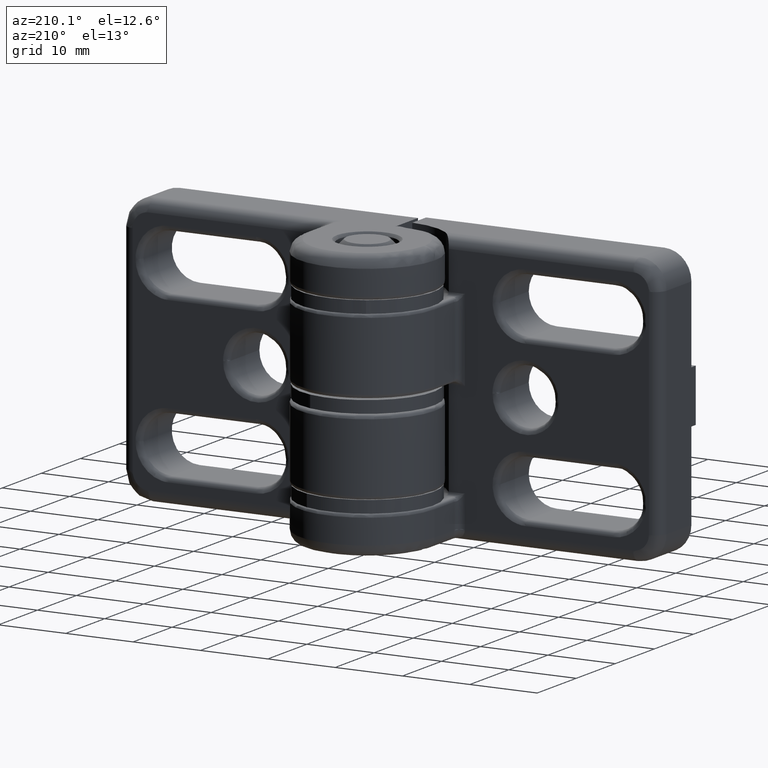
[diagram: clean part render]
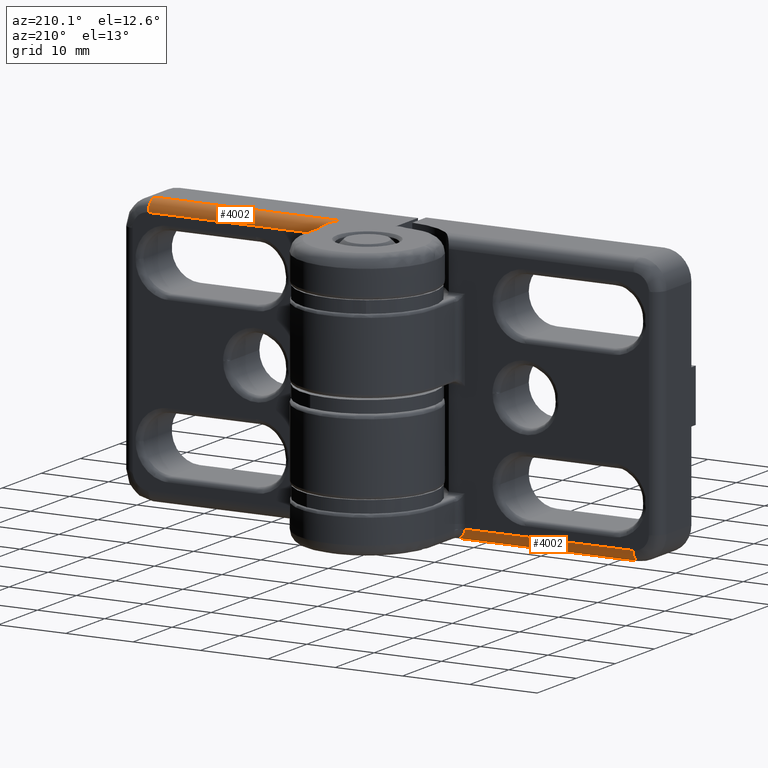
[diagram: same view with one multi-face feature highlighted, each face labeled with its STEP entity id]
A machine part, auxiliary view. The highlighted faces form ONE feature: a constant-radius fillet chain: 2 tangent blend faces with common blend radius 1.69 mm. The faces share edges in the B-rep.
Their STEP definitions:
[1] entity #4002 (Cylinder):
#38 = EDGE_CURVE ( 'NONE', #3611, #4102, #4451, .T. ) ;
#72 = CARTESIAN_POINT ( 'NONE',  ( -8.616843969807044700, -7.690000000000000400, -38.31000000000000200 ) ) ;
#216 = CARTESIAN_POINT ( 'NONE',  ( -11.00000000000000500, -6.000000000000000900, -38.41489750908106500 ) ) ;
#238 = CARTESIAN_POINT ( 'NONE',  ( -10.87015223927734000, -6.081546922280966600, -38.83137427469692000 ) ) ;
#404 = DIRECTION ( 'NONE',  ( -1.000000000000000000, -0.0000000000000000000, 0.0000000000000000000 ) ) ;
#516 = DIRECTION ( 'NONE',  ( 1.000000000000000000, 1.381890554847218500E-016, -0.0000000000000000000 ) ) ;
#580 = DIRECTION ( 'NONE',  ( 1.000000000000000000, 1.381890554847218500E-016, -0.0000000000000000000 ) ) ;
#648 = CARTESIAN_POINT ( 'NONE',  ( -9.962097781041489200, -6.651748226312678400, -39.64842007808361800 ) ) ;
#692 = EDGE_CURVE ( 'NONE', #848, #2110, #3116, .T. ) ;
#693 = CARTESIAN_POINT ( 'NONE',  ( -8.534809781627444600, -7.548762627899488800, -40.00000000000000700 ) ) ;
#826 = VECTOR ( 'NONE', #404, 1000.000000000000000 ) ;
#835 = B_SPLINE_CURVE_WITH_KNOTS ( 'NONE', 3,
 ( #5071, #216, #3305, #1100, #2829, #238, #4147, #1591, #3743, #1138, #2448, #5054, #2428, #5557, #1521, #4169, #4613, #3232, #648, #5498, #1156, #5539, #3678, #4214, #2845, #4645, #4666, #3259, #3283, #2471, #1076, #1501, #693, #4195 ),
 .UNSPECIFIED., .F., .F.,
 ( 4, 2, 2, 2, 2, 2, 1, 1, 2, 2, 2, 2, 1, 1, 1, 1, 2, 2, 2, 4 ),
 ( 0.0000000000000000000, 0.1249999999999786300, 0.1874999999999679400, 0.2499999999999572600, 0.3749999999999364400, 0.4374999999999242800, 0.4687499999999176800, 0.4843749999999156800, 0.4921874999999151200, 0.4999999999999146200, 0.6249999999999358300, 0.6874999999999464900, 0.7187499999999528200, 0.7343749999999559200, 0.7421874999999579200, 0.7460937499999591400, 0.7480468749999597000, 0.7499999999999602500, 0.8749999999999800200, 1.000000000000000000 ),
 .UNSPECIFIED. ) ;
#848 = VERTEX_POINT ( 'NONE', #3490 ) ;
#1073 = FACE_OUTER_BOUND ( 'NONE', #2516, .T. ) ;
#1076 = CARTESIAN_POINT ( 'NONE',  ( -9.059787492741765600, -7.218227404868478000, -39.93628537761496500 ) ) ;
#1100 = CARTESIAN_POINT ( 'NONE',  ( -10.93704350995265000, -6.039458712475565400, -38.67692211151352700 ) ) ;
#1138 = CARTESIAN_POINT ( 'NONE',  ( -10.51489692349308500, -6.304590127779642100, -39.27956085353108100 ) ) ;
#1156 = CARTESIAN_POINT ( 'NONE',  ( -9.653620176495266500, -6.845593580259509800, -39.77517561869756000 ) ) ;
#1213 = CYLINDRICAL_SURFACE ( 'NONE', #1956, 1.690000000000000600 ) ;
#1370 = DIRECTION ( 'NONE',  ( 0.0000000000000000000, 1.000000000000000000, 0.0000000000000000000 ) ) ;
#1501 = CARTESIAN_POINT ( 'NONE',  ( -8.729729236501285100, -7.425481319604487300, -39.98254398408030100 ) ) ;
#1521 = CARTESIAN_POINT ( 'NONE',  ( -10.24559496938072600, -6.473952364515914000, -39.48362016537286200 ) ) ;
#1591 = CARTESIAN_POINT ( 'NONE',  ( -10.74675552305162200, -6.159103002345758200, -39.03424263246488100 ) ) ;
#1612 = CARTESIAN_POINT ( 'NONE',  ( -8.616843969807044700, -6.000000000000000000, -38.31000000000000200 ) ) ;
#1711 = ORIENTED_EDGE ( 'NONE', *, *, #4998, .T. ) ;
#1956 = AXIS2_PLACEMENT_3D ( 'NONE', #72, #516, #1370 ) ;
#2058 = VECTOR ( 'NONE', #3365, 1000.000000000000000 ) ;
#2110 = VERTEX_POINT ( 'NONE', #4144 ) ;
#2428 = CARTESIAN_POINT ( 'NONE',  ( -10.32662282287068200, -6.423008057740044100, -39.42909828730402200 ) ) ;
#2448 = CARTESIAN_POINT ( 'NONE',  ( -10.46054658179532200, -6.338767247700657100, -39.32672467856750800 ) ) ;
#2471 = CARTESIAN_POINT ( 'NONE',  ( -9.194926294108402200, -7.134042960946294100, -39.90751972947324300 ) ) ;
#2516 = EDGE_LOOP ( 'NONE', ( #2866, #1711, #4378, #5283 ) ) ;
#2829 = CARTESIAN_POINT ( 'NONE',  ( -10.91736960681285300, -6.051835920708138700, -38.72877307322390500 ) ) ;
#2845 = CARTESIAN_POINT ( 'NONE',  ( -9.341046119261811500, -7.042236213943599700, -39.87096481265776800 ) ) ;
#2866 = ORIENTED_EDGE ( 'NONE', *, *, #692, .T. ) ;
#3090 = CIRCLE ( 'NONE', #4979, 1.690000000000000600 ) ;
#3116 = LINE ( 'NONE', #4803, #826 ) ;
#3232 = CARTESIAN_POINT ( 'NONE',  ( -10.09610107186217000, -6.567878103366036900, -39.57789902377657400 ) ) ;
#3259 = CARTESIAN_POINT ( 'NONE',  ( -9.306044272793592100, -7.064232273391093400, -39.87987855547902400 ) ) ;
#3283 = CARTESIAN_POINT ( 'NONE',  ( -9.301819276137271300, -7.066886768651286000, -39.88093320534742500 ) ) ;
#3286 = EDGE_CURVE ( 'NONE', #4102, #848, #835, .T. ) ;
#3305 = CARTESIAN_POINT ( 'NONE',  ( -10.98426087748816500, -6.009795558553102000, -38.52044368820066500 ) ) ;
#3365 = DIRECTION ( 'NONE',  ( 1.000000000000000000, 1.381890554847218500E-016, -0.0000000000000000000 ) ) ;
#3490 = CARTESIAN_POINT ( 'NONE',  ( -8.310000000000002300, -7.690000000000001300, -40.00000000000000700 ) ) ;
#3611 = VERTEX_POINT ( 'NONE', #5346 ) ;
#3678 = CARTESIAN_POINT ( 'NONE',  ( -9.460709158796117200, -6.966982877466722200, -39.83808199339841100 ) ) ;
#3743 = CARTESIAN_POINT ( 'NONE',  ( -10.66465024560961800, -6.210512414760863500, -39.13489486366778200 ) ) ;
#4002 = ADVANCED_FACE ( 'NONE', ( #1073 ), #1213, .T. ) ;
#4102 = VERTEX_POINT ( 'NONE', #4223 ) ;
#4144 = CARTESIAN_POINT ( 'NONE',  ( -36.00000000000001400, -7.690000000000002200, -40.00000000000000700 ) ) ;
#4147 = CARTESIAN_POINT ( 'NONE',  ( -10.84331803326109900, -6.098435155633861600, -38.88099877250692100 ) ) ;
#4169 = CARTESIAN_POINT ( 'NONE',  ( -10.22895999369077700, -6.484406927058993000, -39.49435699297674100 ) ) ;
#4195 = CARTESIAN_POINT ( 'NONE',  ( -8.310000000000002300, -7.690000000000001300, -40.00000000000000700 ) ) ;
#4214 = CARTESIAN_POINT ( 'NONE',  ( -9.381425634454382500, -7.016850808979283400, -39.86029083613905000 ) ) ;
#4223 = CARTESIAN_POINT ( 'NONE',  ( -11.00000000000000400, -6.000000000000000900, -38.31000000000000200 ) ) ;
#4378 = ORIENTED_EDGE ( 'NONE', *, *, #38, .T. ) ;
#4451 = LINE ( 'NONE', #1612, #2058 ) ;
#4489 = CARTESIAN_POINT ( 'NONE',  ( -36.00000000000001400, -7.690000000000003900, -38.31000000000000200 ) ) ;
#4509 = DIRECTION ( 'NONE',  ( 0.0000000000000000000, 1.000000000000000000, 0.0000000000000000000 ) ) ;
#4613 = CARTESIAN_POINT ( 'NONE',  ( -10.21936825198741700, -6.490434004571530300, -39.50045492498205800 ) ) ;
#4645 = CARTESIAN_POINT ( 'NONE',  ( -9.320671923410104800, -7.055040918074974200, -39.87619104240133100 ) ) ;
#4666 = CARTESIAN_POINT ( 'NONE',  ( -9.311900602704636000, -7.060552550983848300, -39.87840678254885800 ) ) ;
#4803 = CARTESIAN_POINT ( 'NONE',  ( 0.0000000000000000000, -7.690000000000000400, -40.00000000000000000 ) ) ;
#4979 = AXIS2_PLACEMENT_3D ( 'NONE', #4489, #580, #4509 ) ;
#4998 = EDGE_CURVE ( 'NONE', #2110, #3611, #3090, .T. ) ;
#5054 = CARTESIAN_POINT ( 'NONE',  ( -10.37237221776029500, -6.394229139262317400, -39.39533065569291600 ) ) ;
#5071 = CARTESIAN_POINT ( 'NONE',  ( -11.00000000000000400, -6.000000000000000900, -38.31000000000000200 ) ) ;
#5283 = ORIENTED_EDGE ( 'NONE', *, *, #3286, .T. ) ;
#5346 = CARTESIAN_POINT ( 'NONE',  ( -36.00000000000001400, -6.000000000000003600, -38.31000000000000200 ) ) ;
#5498 = CARTESIAN_POINT ( 'NONE',  ( -9.734112162873895400, -6.794967167210694800, -39.74468637373286100 ) ) ;
#5539 = CARTESIAN_POINT ( 'NONE',  ( -9.526137026443189300, -6.925808588947036000, -39.81765610671136100 ) ) ;
#5557 = CARTESIAN_POINT ( 'NONE',  ( -10.27033965630663600, -6.458398744959565900, -39.46743231917752600 ) ) ;
[2] entity #4002 (Cylinder):
#38 = EDGE_CURVE ( 'NONE', #3611, #4102, #4451, .T. ) ;
#72 = CARTESIAN_POINT ( 'NONE',  ( -8.616843969807044700, -7.690000000000000400, -38.31000000000000200 ) ) ;
#216 = CARTESIAN_POINT ( 'NONE',  ( -11.00000000000000500, -6.000000000000000900, -38.41489750908106500 ) ) ;
#238 = CARTESIAN_POINT ( 'NONE',  ( -10.87015223927734000, -6.081546922280966600, -38.83137427469692000 ) ) ;
#404 = DIRECTION ( 'NONE',  ( -1.000000000000000000, -0.0000000000000000000, 0.0000000000000000000 ) ) ;
#516 = DIRECTION ( 'NONE',  ( 1.000000000000000000, 1.381890554847218500E-016, -0.0000000000000000000 ) ) ;
#580 = DIRECTION ( 'NONE',  ( 1.000000000000000000, 1.381890554847218500E-016, -0.0000000000000000000 ) ) ;
#648 = CARTESIAN_POINT ( 'NONE',  ( -9.962097781041489200, -6.651748226312678400, -39.64842007808361800 ) ) ;
#692 = EDGE_CURVE ( 'NONE', #848, #2110, #3116, .T. ) ;
#693 = CARTESIAN_POINT ( 'NONE',  ( -8.534809781627444600, -7.548762627899488800, -40.00000000000000700 ) ) ;
#826 = VECTOR ( 'NONE', #404, 1000.000000000000000 ) ;
#835 = B_SPLINE_CURVE_WITH_KNOTS ( 'NONE', 3,
 ( #5071, #216, #3305, #1100, #2829, #238, #4147, #1591, #3743, #1138, #2448, #5054, #2428, #5557, #1521, #4169, #4613, #3232, #648, #5498, #1156, #5539, #3678, #4214, #2845, #4645, #4666, #3259, #3283, #2471, #1076, #1501, #693, #4195 ),
 .UNSPECIFIED., .F., .F.,
 ( 4, 2, 2, 2, 2, 2, 1, 1, 2, 2, 2, 2, 1, 1, 1, 1, 2, 2, 2, 4 ),
 ( 0.0000000000000000000, 0.1249999999999786300, 0.1874999999999679400, 0.2499999999999572600, 0.3749999999999364400, 0.4374999999999242800, 0.4687499999999176800, 0.4843749999999156800, 0.4921874999999151200, 0.4999999999999146200, 0.6249999999999358300, 0.6874999999999464900, 0.7187499999999528200, 0.7343749999999559200, 0.7421874999999579200, 0.7460937499999591400, 0.7480468749999597000, 0.7499999999999602500, 0.8749999999999800200, 1.000000000000000000 ),
 .UNSPECIFIED. ) ;
#848 = VERTEX_POINT ( 'NONE', #3490 ) ;
#1073 = FACE_OUTER_BOUND ( 'NONE', #2516, .T. ) ;
#1076 = CARTESIAN_POINT ( 'NONE',  ( -9.059787492741765600, -7.218227404868478000, -39.93628537761496500 ) ) ;
#1100 = CARTESIAN_POINT ( 'NONE',  ( -10.93704350995265000, -6.039458712475565400, -38.67692211151352700 ) ) ;
#1138 = CARTESIAN_POINT ( 'NONE',  ( -10.51489692349308500, -6.304590127779642100, -39.27956085353108100 ) ) ;
#1156 = CARTESIAN_POINT ( 'NONE',  ( -9.653620176495266500, -6.845593580259509800, -39.77517561869756000 ) ) ;
#1213 = CYLINDRICAL_SURFACE ( 'NONE', #1956, 1.690000000000000600 ) ;
#1370 = DIRECTION ( 'NONE',  ( 0.0000000000000000000, 1.000000000000000000, 0.0000000000000000000 ) ) ;
#1501 = CARTESIAN_POINT ( 'NONE',  ( -8.729729236501285100, -7.425481319604487300, -39.98254398408030100 ) ) ;
#1521 = CARTESIAN_POINT ( 'NONE',  ( -10.24559496938072600, -6.473952364515914000, -39.48362016537286200 ) ) ;
#1591 = CARTESIAN_POINT ( 'NONE',  ( -10.74675552305162200, -6.159103002345758200, -39.03424263246488100 ) ) ;
#1612 = CARTESIAN_POINT ( 'NONE',  ( -8.616843969807044700, -6.000000000000000000, -38.31000000000000200 ) ) ;
#1711 = ORIENTED_EDGE ( 'NONE', *, *, #4998, .T. ) ;
#1956 = AXIS2_PLACEMENT_3D ( 'NONE', #72, #516, #1370 ) ;
#2058 = VECTOR ( 'NONE', #3365, 1000.000000000000000 ) ;
#2110 = VERTEX_POINT ( 'NONE', #4144 ) ;
#2428 = CARTESIAN_POINT ( 'NONE',  ( -10.32662282287068200, -6.423008057740044100, -39.42909828730402200 ) ) ;
#2448 = CARTESIAN_POINT ( 'NONE',  ( -10.46054658179532200, -6.338767247700657100, -39.32672467856750800 ) ) ;
#2471 = CARTESIAN_POINT ( 'NONE',  ( -9.194926294108402200, -7.134042960946294100, -39.90751972947324300 ) ) ;
#2516 = EDGE_LOOP ( 'NONE', ( #2866, #1711, #4378, #5283 ) ) ;
#2829 = CARTESIAN_POINT ( 'NONE',  ( -10.91736960681285300, -6.051835920708138700, -38.72877307322390500 ) ) ;
#2845 = CARTESIAN_POINT ( 'NONE',  ( -9.341046119261811500, -7.042236213943599700, -39.87096481265776800 ) ) ;
#2866 = ORIENTED_EDGE ( 'NONE', *, *, #692, .T. ) ;
#3090 = CIRCLE ( 'NONE', #4979, 1.690000000000000600 ) ;
#3116 = LINE ( 'NONE', #4803, #826 ) ;
#3232 = CARTESIAN_POINT ( 'NONE',  ( -10.09610107186217000, -6.567878103366036900, -39.57789902377657400 ) ) ;
#3259 = CARTESIAN_POINT ( 'NONE',  ( -9.306044272793592100, -7.064232273391093400, -39.87987855547902400 ) ) ;
#3283 = CARTESIAN_POINT ( 'NONE',  ( -9.301819276137271300, -7.066886768651286000, -39.88093320534742500 ) ) ;
#3286 = EDGE_CURVE ( 'NONE', #4102, #848, #835, .T. ) ;
#3305 = CARTESIAN_POINT ( 'NONE',  ( -10.98426087748816500, -6.009795558553102000, -38.52044368820066500 ) ) ;
#3365 = DIRECTION ( 'NONE',  ( 1.000000000000000000, 1.381890554847218500E-016, -0.0000000000000000000 ) ) ;
#3490 = CARTESIAN_POINT ( 'NONE',  ( -8.310000000000002300, -7.690000000000001300, -40.00000000000000700 ) ) ;
#3611 = VERTEX_POINT ( 'NONE', #5346 ) ;
#3678 = CARTESIAN_POINT ( 'NONE',  ( -9.460709158796117200, -6.966982877466722200, -39.83808199339841100 ) ) ;
#3743 = CARTESIAN_POINT ( 'NONE',  ( -10.66465024560961800, -6.210512414760863500, -39.13489486366778200 ) ) ;
#4002 = ADVANCED_FACE ( 'NONE', ( #1073 ), #1213, .T. ) ;
#4102 = VERTEX_POINT ( 'NONE', #4223 ) ;
#4144 = CARTESIAN_POINT ( 'NONE',  ( -36.00000000000001400, -7.690000000000002200, -40.00000000000000700 ) ) ;
#4147 = CARTESIAN_POINT ( 'NONE',  ( -10.84331803326109900, -6.098435155633861600, -38.88099877250692100 ) ) ;
#4169 = CARTESIAN_POINT ( 'NONE',  ( -10.22895999369077700, -6.484406927058993000, -39.49435699297674100 ) ) ;
#4195 = CARTESIAN_POINT ( 'NONE',  ( -8.310000000000002300, -7.690000000000001300, -40.00000000000000700 ) ) ;
#4214 = CARTESIAN_POINT ( 'NONE',  ( -9.381425634454382500, -7.016850808979283400, -39.86029083613905000 ) ) ;
#4223 = CARTESIAN_POINT ( 'NONE',  ( -11.00000000000000400, -6.000000000000000900, -38.31000000000000200 ) ) ;
#4378 = ORIENTED_EDGE ( 'NONE', *, *, #38, .T. ) ;
#4451 = LINE ( 'NONE', #1612, #2058 ) ;
#4489 = CARTESIAN_POINT ( 'NONE',  ( -36.00000000000001400, -7.690000000000003900, -38.31000000000000200 ) ) ;
#4509 = DIRECTION ( 'NONE',  ( 0.0000000000000000000, 1.000000000000000000, 0.0000000000000000000 ) ) ;
#4613 = CARTESIAN_POINT ( 'NONE',  ( -10.21936825198741700, -6.490434004571530300, -39.50045492498205800 ) ) ;
#4645 = CARTESIAN_POINT ( 'NONE',  ( -9.320671923410104800, -7.055040918074974200, -39.87619104240133100 ) ) ;
#4666 = CARTESIAN_POINT ( 'NONE',  ( -9.311900602704636000, -7.060552550983848300, -39.87840678254885800 ) ) ;
#4803 = CARTESIAN_POINT ( 'NONE',  ( 0.0000000000000000000, -7.690000000000000400, -40.00000000000000000 ) ) ;
#4979 = AXIS2_PLACEMENT_3D ( 'NONE', #4489, #580, #4509 ) ;
#4998 = EDGE_CURVE ( 'NONE', #2110, #3611, #3090, .T. ) ;
#5054 = CARTESIAN_POINT ( 'NONE',  ( -10.37237221776029500, -6.394229139262317400, -39.39533065569291600 ) ) ;
#5071 = CARTESIAN_POINT ( 'NONE',  ( -11.00000000000000400, -6.000000000000000900, -38.31000000000000200 ) ) ;
#5283 = ORIENTED_EDGE ( 'NONE', *, *, #3286, .T. ) ;
#5346 = CARTESIAN_POINT ( 'NONE',  ( -36.00000000000001400, -6.000000000000003600, -38.31000000000000200 ) ) ;
#5498 = CARTESIAN_POINT ( 'NONE',  ( -9.734112162873895400, -6.794967167210694800, -39.74468637373286100 ) ) ;
#5539 = CARTESIAN_POINT ( 'NONE',  ( -9.526137026443189300, -6.925808588947036000, -39.81765610671136100 ) ) ;
#5557 = CARTESIAN_POINT ( 'NONE',  ( -10.27033965630663600, -6.458398744959565900, -39.46743231917752600 ) ) ;